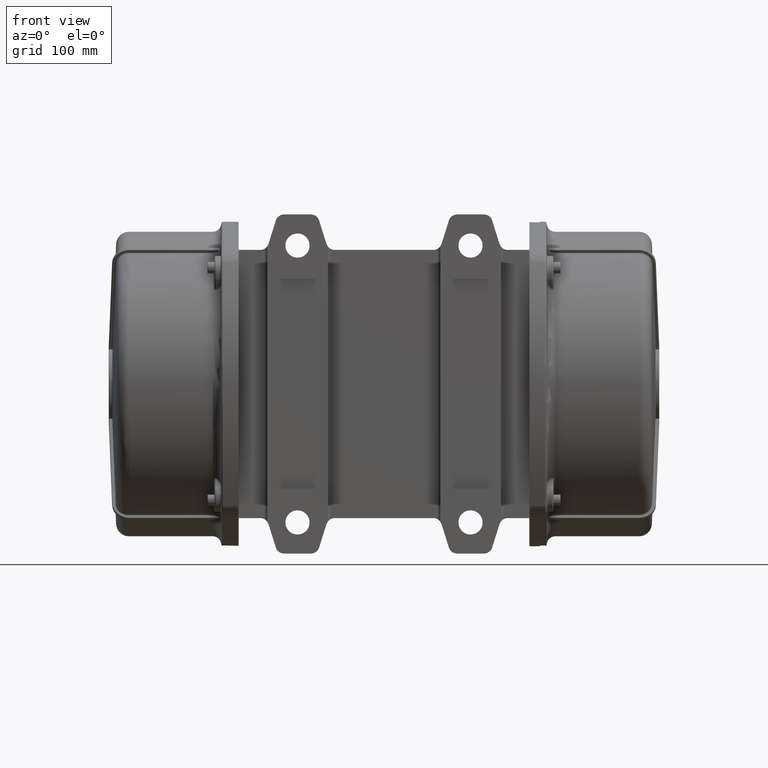
[diagram: clean part render]
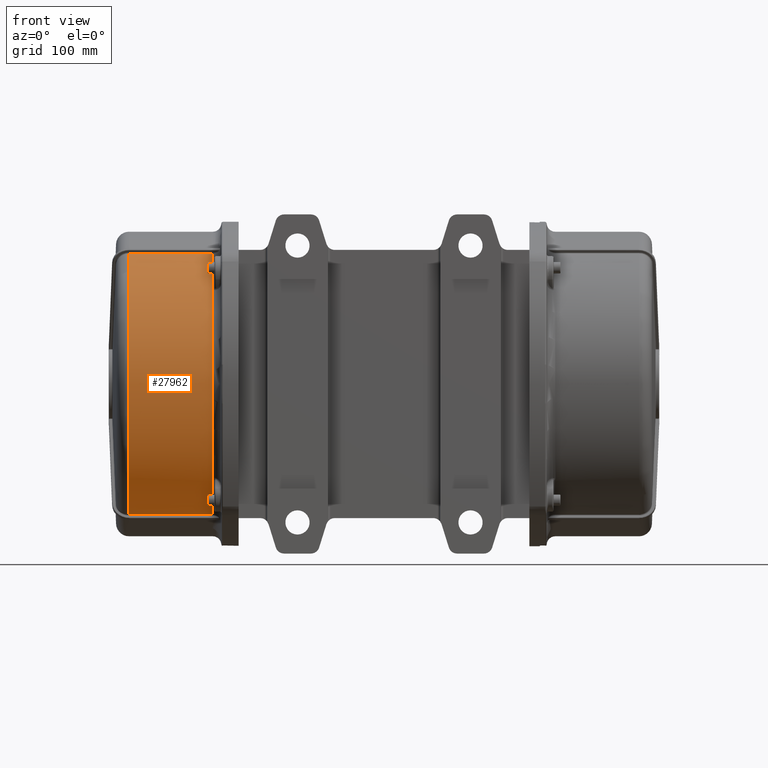
[diagram: same view with one face highlighted and labeled with its STEP entity id]
A machine part, front view. The second image highlights one B-rep face of the part: STEP entity #27962.
In plain terms, the highlighted cylindrical surface (partial cylindrical patch) has radius 176 mm, axis along (1, 0, 0).
Its self-contained STEP definition (entity closure, byte-faithful):
#3799 = CARTESIAN_POINT ( 'NONE',  ( -198.0000000000000000, 101.0032420720011900, -150.6505560779419900 ) ) ;
#3939 = CARTESIAN_POINT ( 'NONE',  ( -198.0000000000000000, 80.98422832981410100, -136.5704889076450000 ) ) ;
#4158 = DIRECTION ( 'NONE',  ( 0.0000000000000000000, 0.0000000000000000000, -1.000000000000000000 ) ) ;
#4160 = DIRECTION ( 'NONE',  ( 1.000000000000000000, 0.0000000000000000000, 0.0000000000000000000 ) ) ;
#4161 = AXIS2_PLACEMENT_3D ( 'NONE', #4176, #4160, #4158 ) ;
#4165 = CIRCLE ( 'NONE', #4161, 176.0000000000000000 ) ;
#4176 = CARTESIAN_POINT ( 'NONE',  ( -198.0000000000000000, 192.0000000000000000, 0.0000000000000000000 ) ) ;
#4394 = CARTESIAN_POINT ( 'NONE',  ( -198.0000000000000000, 55.42951109235510600, 111.0157716701859800 ) ) ;
#4773 = CARTESIAN_POINT ( 'NONE',  ( -198.0000000000000000, 55.42951109235519900, -111.0157716701859800 ) ) ;
#4774 = DIRECTION ( 'NONE',  ( 0.0000000000000000000, 0.0000000000000000000, -1.000000000000000000 ) ) ;
#4775 = DIRECTION ( 'NONE',  ( 1.000000000000000000, 0.0000000000000000000, 0.0000000000000000000 ) ) ;
#4776 = CARTESIAN_POINT ( 'NONE',  ( -198.0000000000000000, 192.0000000000000000, 0.0000000000000000000 ) ) ;
#4783 = AXIS2_PLACEMENT_3D ( 'NONE', #4776, #4775, #4774 ) ;
#4791 = CIRCLE ( 'NONE', #4783, 176.0000000000000000 ) ;
#5091 = CIRCLE ( 'NONE', #5161, 176.0000000000000000 ) ;
#5159 = DIRECTION ( 'NONE',  ( 0.0000000000000000000, 0.0000000000000000000, -1.000000000000000000 ) ) ;
#5160 = DIRECTION ( 'NONE',  ( 1.000000000000000000, 0.0000000000000000000, 0.0000000000000000000 ) ) ;
#5161 = AXIS2_PLACEMENT_3D ( 'NONE', #5186, #5160, #5159 ) ;
#5186 = CARTESIAN_POINT ( 'NONE',  ( -198.0000000000000000, 192.0000000000000000, 0.0000000000000000000 ) ) ;
#5661 = CARTESIAN_POINT ( 'NONE',  ( -198.0000000000000000, 101.0032420719990000, 150.6505560779409900 ) ) ;
#5667 = CARTESIAN_POINT ( 'NONE',  ( -198.0000000000000000, 80.98422832981400200, 136.5704889076448000 ) ) ;
#27962 = ADVANCED_FACE ( 'NONE', ( #48547 ), #48542, .T. ) ;
#27964 = ORIENTED_EDGE ( 'NONE', *, *, #28024, .F. ) ;
#28024 = EDGE_CURVE ( 'NONE', #28040, #28041, #48696, .T. ) ;
#28027 = EDGE_LOOP ( 'NONE', ( #27964, #28062, #28032, #28065, #28063, #28069, #28066, #28128 ) ) ;
#28032 = ORIENTED_EDGE ( 'NONE', *, *, #58782, .F. ) ;
#28040 = VERTEX_POINT ( 'NONE', #48684 ) ;
#28041 = VERTEX_POINT ( 'NONE', #48709 ) ;
#28042 = EDGE_CURVE ( 'NONE', #28041, #65465, #48766, .T. ) ;
#28059 = EDGE_CURVE ( 'NONE', #55698, #28040, #48794, .T. ) ;
#28060 = EDGE_CURVE ( 'NONE', #62852, #57251, #48786, .T. ) ;
#28062 = ORIENTED_EDGE ( 'NONE', *, *, #28059, .F. ) ;
#28063 = ORIENTED_EDGE ( 'NONE', *, *, #62705, .F. ) ;
#28065 = ORIENTED_EDGE ( 'NONE', *, *, #28060, .F. ) ;
#28066 = ORIENTED_EDGE ( 'NONE', *, *, #64820, .F. ) ;
#28069 = ORIENTED_EDGE ( 'NONE', *, *, #28071, .F. ) ;
#28071 = EDGE_CURVE ( 'NONE', #65475, #62031, #48782, .T. ) ;
#28128 = ORIENTED_EDGE ( 'NONE', *, *, #28042, .F. ) ;
#48534 = DIRECTION ( 'NONE',  ( 0.0000000000000000000, 0.0000000000000000000, 1.000000000000000000 ) ) ;
#48537 = CARTESIAN_POINT ( 'NONE',  ( -318.1999999999999900, 192.0000000000000000, 0.0000000000000000000 ) ) ;
#48542 = CYLINDRICAL_SURFACE ( 'NONE', #48546, 176.0000000000000000 ) ;
#48544 = DIRECTION ( 'NONE',  ( 1.000000000000000000, 0.0000000000000000000, 0.0000000000000000000 ) ) ;
#48546 = AXIS2_PLACEMENT_3D ( 'NONE', #48537, #48544, #48534 ) ;
#48547 = FACE_OUTER_BOUND ( 'NONE', #28027, .T. ) ;
#48684 = CARTESIAN_POINT ( 'NONE',  ( -294.7273494982050000, 101.0032420720011900, -150.6505560779419900 ) ) ;
#48692 = DIRECTION ( 'NONE',  ( 0.0000000000000000000, 0.0000000000000000000, -1.000000000000000000 ) ) ;
#48693 = DIRECTION ( 'NONE',  ( -1.000000000000000000, -0.0000000000000000000, -0.0000000000000000000 ) ) ;
#48694 = CARTESIAN_POINT ( 'NONE',  ( -294.7273494982050000, 192.0000000000000000, 0.0000000000000000000 ) ) ;
#48695 = AXIS2_PLACEMENT_3D ( 'NONE', #48694, #48693, #48692 ) ;
#48696 = CIRCLE ( 'NONE', #48695, 176.0000000000000000 ) ;
#48709 = CARTESIAN_POINT ( 'NONE',  ( -294.7273494982050000, 101.0032420719990000, 150.6505560779409900 ) ) ;
#48758 = DIRECTION ( 'NONE',  ( 1.000000000000000000, 0.0000000000000000000, 0.0000000000000000000 ) ) ;
#48759 = VECTOR ( 'NONE', #48758, 1000.000000000000000 ) ;
#48760 = CARTESIAN_POINT ( 'NONE',  ( -318.1999999999999900, 101.0032420719990000, 150.6505560779409900 ) ) ;
#48766 = LINE ( 'NONE', #48760, #48759 ) ;
#48779 = AXIS2_PLACEMENT_3D ( 'NONE', #48825, #48820, #48819 ) ;
#48782 = CIRCLE ( 'NONE', #48779, 176.0000000000000000 ) ;
#48784 = DIRECTION ( 'NONE',  ( 0.0000000000000000000, 0.0000000000000000000, -1.000000000000000000 ) ) ;
#48785 = AXIS2_PLACEMENT_3D ( 'NONE', #48796, #48795, #48784 ) ;
#48786 = CIRCLE ( 'NONE', #48785, 176.0000000000000000 ) ;
#48791 = DIRECTION ( 'NONE',  ( -1.000000000000000000, -0.0000000000000000000, -0.0000000000000000000 ) ) ;
#48792 = VECTOR ( 'NONE', #48791, 1000.000000000000000 ) ;
#48793 = CARTESIAN_POINT ( 'NONE',  ( -318.1999999999999900, 101.0032420720011900, -150.6505560779419900 ) ) ;
#48794 = LINE ( 'NONE', #48793, #48792 ) ;
#48795 = DIRECTION ( 'NONE',  ( 1.000000000000000000, 0.0000000000000000000, 0.0000000000000000000 ) ) ;
#48796 = CARTESIAN_POINT ( 'NONE',  ( -198.0000000000000000, 192.0000000000000000, 0.0000000000000000000 ) ) ;
#48819 = DIRECTION ( 'NONE',  ( 0.0000000000000000000, 0.0000000000000000000, -1.000000000000000000 ) ) ;
#48820 = DIRECTION ( 'NONE',  ( 1.000000000000000000, 0.0000000000000000000, 0.0000000000000000000 ) ) ;
#48825 = CARTESIAN_POINT ( 'NONE',  ( -198.0000000000000000, 192.0000000000000000, 0.0000000000000000000 ) ) ;
#55698 = VERTEX_POINT ( 'NONE', #3799 ) ;
#57251 = VERTEX_POINT ( 'NONE', #3939 ) ;
#58782 = EDGE_CURVE ( 'NONE', #57251, #55698, #4165, .T. ) ;
#62031 = VERTEX_POINT ( 'NONE', #4394 ) ;
#62705 = EDGE_CURVE ( 'NONE', #62031, #62852, #4791, .T. ) ;
#62852 = VERTEX_POINT ( 'NONE', #4773 ) ;
#64820 = EDGE_CURVE ( 'NONE', #65465, #65475, #5091, .T. ) ;
#65465 = VERTEX_POINT ( 'NONE', #5661 ) ;
#65475 = VERTEX_POINT ( 'NONE', #5667 ) ;